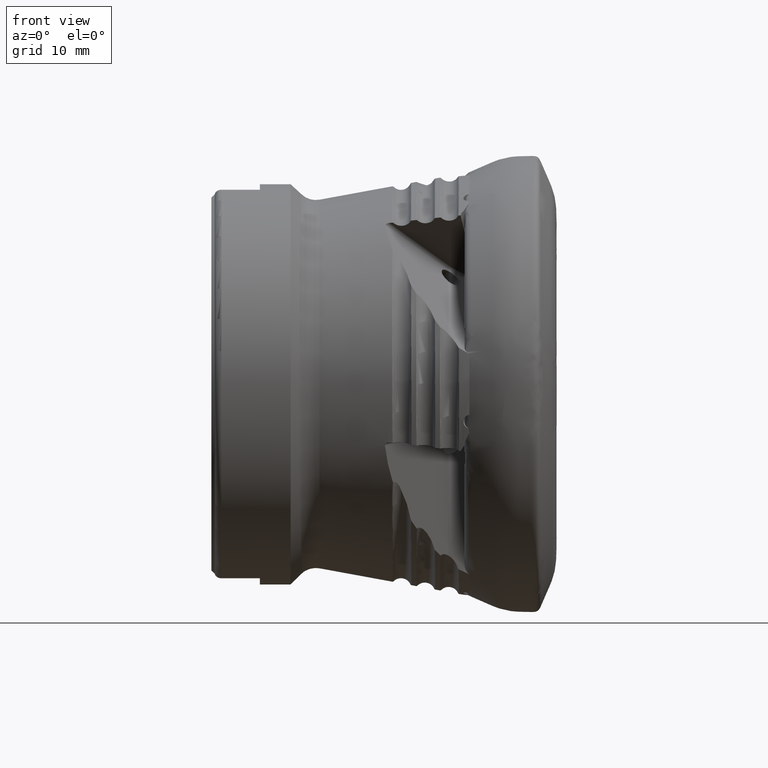
[diagram: clean part render]
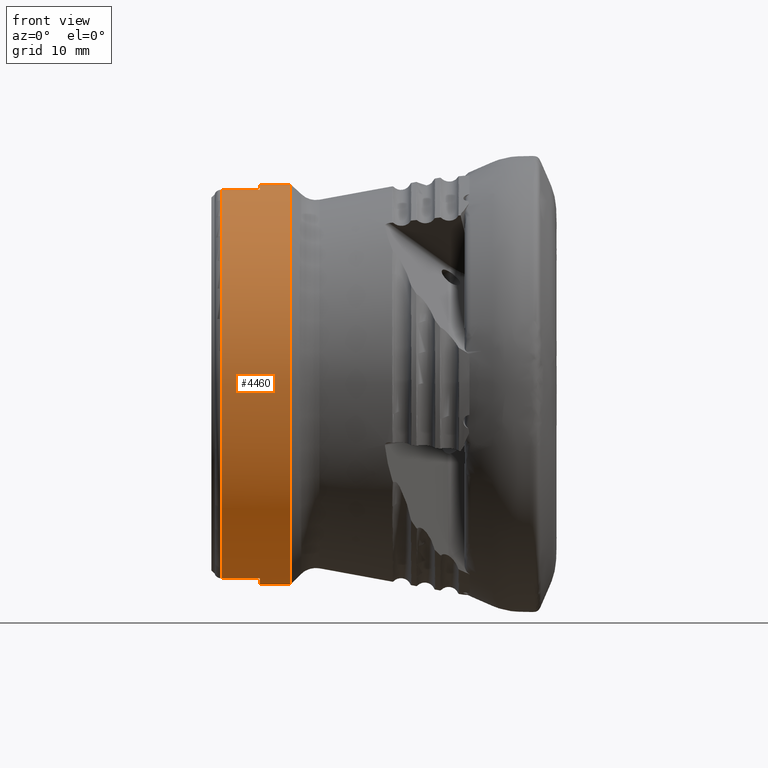
[diagram: same view with one face highlighted and labeled with its STEP entity id]
A machine part, front view. The second image highlights one B-rep face of the part: STEP entity #4460.
In plain terms, the highlighted cylindrical surface (bore or boss wall) has radius 29 mm, axis along (1, -0, -0).
Its self-contained STEP definition (entity closure, byte-faithful):
#97 = DIRECTION ( 'NONE',  ( 0.0000000000000000000, 0.0000000000000000000, -1.000000000000000000 ) ) ;
#244 = LINE ( 'NONE', #5242, #11947 ) ;
#916 = VERTEX_POINT ( 'NONE', #9058 ) ;
#1020 = CARTESIAN_POINT ( 'NONE',  ( -41.90525917703946100, 0.0000000000000000000, 0.0000000000000000000 ) ) ;
#1042 = ORIENTED_EDGE ( 'NONE', *, *, #12435, .F. ) ;
#1043 = CIRCLE ( 'NONE', #10506, 29.00000000000000400 ) ;
#1139 = FACE_OUTER_BOUND ( 'NONE', #9000, .T. ) ;
#1336 = AXIS2_PLACEMENT_3D ( 'NONE', #1020, #8713, #2139 ) ;
#1412 = EDGE_CURVE ( 'NONE', #3987, #916, #6134, .T. ) ;
#1580 = CARTESIAN_POINT ( 'NONE',  ( -41.90525917703946100, 7.162962588931240900, 28.10145844879891900 ) ) ;
#1883 = EDGE_CURVE ( 'NONE', #11584, #9052, #12858, .T. ) ;
#2139 = DIRECTION ( 'NONE',  ( 0.0000000000000000000, 0.0000000000000000000, -1.000000000000000000 ) ) ;
#2147 = AXIS2_PLACEMENT_3D ( 'NONE', #5870, #13581, #6968 ) ;
#3093 = EDGE_CURVE ( 'NONE', #11584, #916, #12160, .T. ) ;
#3156 = ORIENTED_EDGE ( 'NONE', *, *, #9194, .T. ) ;
#3337 = AXIS2_PLACEMENT_3D ( 'NONE', #4800, #12509, #5901 ) ;
#3573 = CARTESIAN_POINT ( 'NONE',  ( -41.90525917703946100, -7.162962588931220500, 28.10145844879891900 ) ) ;
#3706 = CYLINDRICAL_SURFACE ( 'NONE', #4119, 29.00000000000000400 ) ;
#3987 = VERTEX_POINT ( 'NONE', #6852 ) ;
#4119 = AXIS2_PLACEMENT_3D ( 'NONE', #11058, #4416, #7717 ) ;
#4151 = ORIENTED_EDGE ( 'NONE', *, *, #3093, .F. ) ;
#4416 = DIRECTION ( 'NONE',  ( 1.000000000000000000, -0.0000000000000000000, -0.0000000000000000000 ) ) ;
#4460 = ADVANCED_FACE ( 'NONE', ( #9910, #1139 ), #3706, .T. ) ;
#4650 = DIRECTION ( 'NONE',  ( -1.000000000000000000, -0.0000000000000000000, -0.0000000000000000000 ) ) ;
#4678 = CARTESIAN_POINT ( 'NONE',  ( -47.45525917703945100, 7.162962588931240900, 28.10145844879891900 ) ) ;
#4709 = ORIENTED_EDGE ( 'NONE', *, *, #12020, .T. ) ;
#4800 = CARTESIAN_POINT ( 'NONE',  ( -37.45525917703945900, 0.0000000000000000000, 0.0000000000000000000 ) ) ;
#5000 = DIRECTION ( 'NONE',  ( 1.000000000000000000, -0.0000000000000000000, -0.0000000000000000000 ) ) ;
#5238 = DIRECTION ( 'NONE',  ( -1.000000000000000000, 0.0000000000000000000, 0.0000000000000000000 ) ) ;
#5242 = CARTESIAN_POINT ( 'NONE',  ( -4.363080244708006400E-030, -7.162962588931209000, 28.10145844879892300 ) ) ;
#5870 = CARTESIAN_POINT ( 'NONE',  ( -47.45525917703945100, 0.0000000000000000000, 0.0000000000000000000 ) ) ;
#5901 = DIRECTION ( 'NONE',  ( 0.0000000000000000000, 0.0000000000000000000, -1.000000000000000000 ) ) ;
#5921 = CARTESIAN_POINT ( 'NONE',  ( -41.90525917703946100, 7.162962588931239200, -28.10145844879891200 ) ) ;
#6088 = ORIENTED_EDGE ( 'NONE', *, *, #12362, .F. ) ;
#6134 = LINE ( 'NONE', #6941, #11656 ) ;
#6675 = DIRECTION ( 'NONE',  ( 1.000000000000000000, -0.0000000000000000000, -0.0000000000000000000 ) ) ;
#6760 = ORIENTED_EDGE ( 'NONE', *, *, #14047, .T. ) ;
#6852 = CARTESIAN_POINT ( 'NONE',  ( -47.45525917703945100, -7.162962588931218700, -28.10145844879891900 ) ) ;
#6925 = VERTEX_POINT ( 'NONE', #7054 ) ;
#6941 = CARTESIAN_POINT ( 'NONE',  ( -3.593124907406593300E-030, -7.162962588931207200, -28.10145844879892600 ) ) ;
#6968 = DIRECTION ( 'NONE',  ( 0.0000000000000000000, 0.0000000000000000000, -1.000000000000000000 ) ) ;
#7054 = CARTESIAN_POINT ( 'NONE',  ( -37.45525917703945900, 0.0000000000000000000, -29.00000000000000400 ) ) ;
#7188 = CIRCLE ( 'NONE', #2147, 29.00000000000000400 ) ;
#7212 = VECTOR ( 'NONE', #5000, 1000.000000000000000 ) ;
#7717 = DIRECTION ( 'NONE',  ( 0.0000000000000000000, 0.0000000000000000000, -1.000000000000000000 ) ) ;
#8320 = CARTESIAN_POINT ( 'NONE',  ( -47.45525917703945100, 7.162962588931237400, -28.10145844879891200 ) ) ;
#8402 = CIRCLE ( 'NONE', #10226, 29.00000000000000400 ) ;
#8713 = DIRECTION ( 'NONE',  ( -1.000000000000000000, -0.0000000000000000000, -0.0000000000000000000 ) ) ;
#9000 = EDGE_LOOP ( 'NONE', ( #1042 ) ) ;
#9052 = VERTEX_POINT ( 'NONE', #8320 ) ;
#9058 = CARTESIAN_POINT ( 'NONE',  ( -41.90525917703946100, -7.162962588931217800, -28.10145844879891900 ) ) ;
#9194 = EDGE_CURVE ( 'NONE', #10090, #3987, #1043, .T. ) ;
#9370 = VERTEX_POINT ( 'NONE', #3573 ) ;
#9910 = FACE_OUTER_BOUND ( 'NONE', #13718, .T. ) ;
#9925 = VECTOR ( 'NONE', #5238, 1000.000000000000000 ) ;
#9960 = EDGE_CURVE ( 'NONE', #10324, #10396, #10135, .T. ) ;
#10090 = VERTEX_POINT ( 'NONE', #12888 ) ;
#10135 = LINE ( 'NONE', #11595, #7212 ) ;
#10226 = AXIS2_PLACEMENT_3D ( 'NONE', #11246, #4650, #12361 ) ;
#10261 = ORIENTED_EDGE ( 'NONE', *, *, #1883, .T. ) ;
#10281 = DIRECTION ( 'NONE',  ( 1.000000000000000000, -0.0000000000000000000, -0.0000000000000000000 ) ) ;
#10324 = VERTEX_POINT ( 'NONE', #4678 ) ;
#10396 = VERTEX_POINT ( 'NONE', #1580 ) ;
#10506 = AXIS2_PLACEMENT_3D ( 'NONE', #13270, #6675, #97 ) ;
#11058 = CARTESIAN_POINT ( 'NONE',  ( 0.0000000000000000000, 0.0000000000000000000, 0.0000000000000000000 ) ) ;
#11246 = CARTESIAN_POINT ( 'NONE',  ( -41.90525917703946100, 0.0000000000000000000, 0.0000000000000000000 ) ) ;
#11275 = CIRCLE ( 'NONE', #3337, 29.00000000000000400 ) ;
#11584 = VERTEX_POINT ( 'NONE', #5921 ) ;
#11595 = CARTESIAN_POINT ( 'NONE',  ( 0.0000000000000000000, 7.162962588931241800, 28.10145844879891900 ) ) ;
#11649 = ORIENTED_EDGE ( 'NONE', *, *, #1412, .T. ) ;
#11656 = VECTOR ( 'NONE', #10281, 1000.000000000000000 ) ;
#11847 = DIRECTION ( 'NONE',  ( -1.000000000000000000, 0.0000000000000000000, 0.0000000000000000000 ) ) ;
#11947 = VECTOR ( 'NONE', #11847, 1000.000000000000000 ) ;
#12020 = EDGE_CURVE ( 'NONE', #9052, #10324, #7188, .T. ) ;
#12160 = CIRCLE ( 'NONE', #1336, 29.00000000000000400 ) ;
#12361 = DIRECTION ( 'NONE',  ( 0.0000000000000000000, 3.552713678800500900E-015, -1.000000000000000000 ) ) ;
#12362 = EDGE_CURVE ( 'NONE', #9370, #10396, #8402, .T. ) ;
#12435 = EDGE_CURVE ( 'NONE', #6925, #6925, #11275, .T. ) ;
#12509 = DIRECTION ( 'NONE',  ( 1.000000000000000000, -0.0000000000000000000, -0.0000000000000000000 ) ) ;
#12858 = LINE ( 'NONE', #12938, #9925 ) ;
#12888 = CARTESIAN_POINT ( 'NONE',  ( -47.45525917703945100, -7.162962588931221400, 28.10145844879891900 ) ) ;
#12938 = CARTESIAN_POINT ( 'NONE',  ( 0.0000000000000000000, 7.162962588931241800, -28.10145844879891900 ) ) ;
#13270 = CARTESIAN_POINT ( 'NONE',  ( -47.45525917703945100, 0.0000000000000000000, 0.0000000000000000000 ) ) ;
#13581 = DIRECTION ( 'NONE',  ( 1.000000000000000000, -0.0000000000000000000, -0.0000000000000000000 ) ) ;
#13645 = ORIENTED_EDGE ( 'NONE', *, *, #9960, .T. ) ;
#13718 = EDGE_LOOP ( 'NONE', ( #4709, #13645, #6088, #6760, #3156, #11649, #4151, #10261 ) ) ;
#14047 = EDGE_CURVE ( 'NONE', #9370, #10090, #244, .T. ) ;